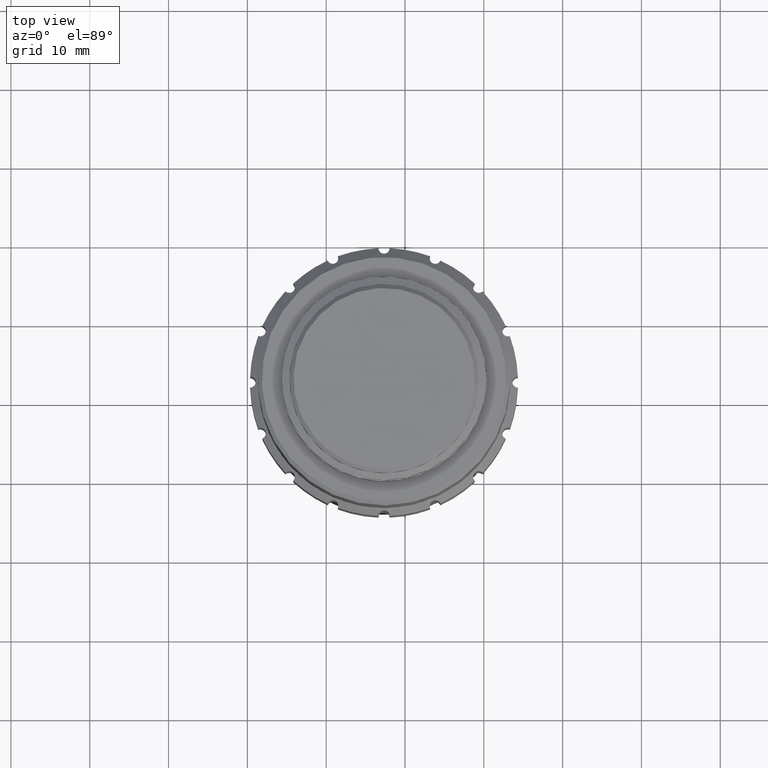
[diagram: clean part render]
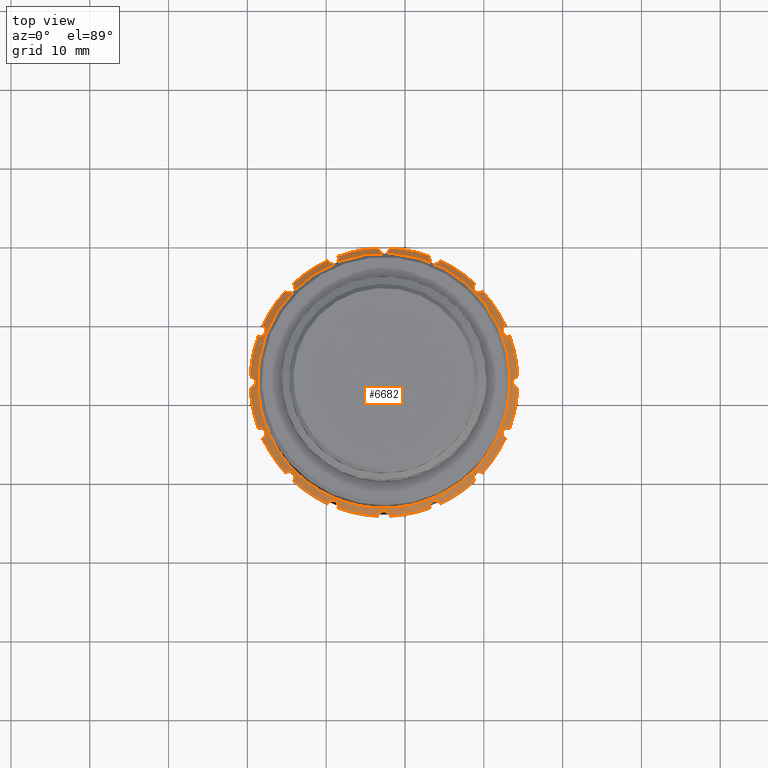
[diagram: same view with one face highlighted and labeled with its STEP entity id]
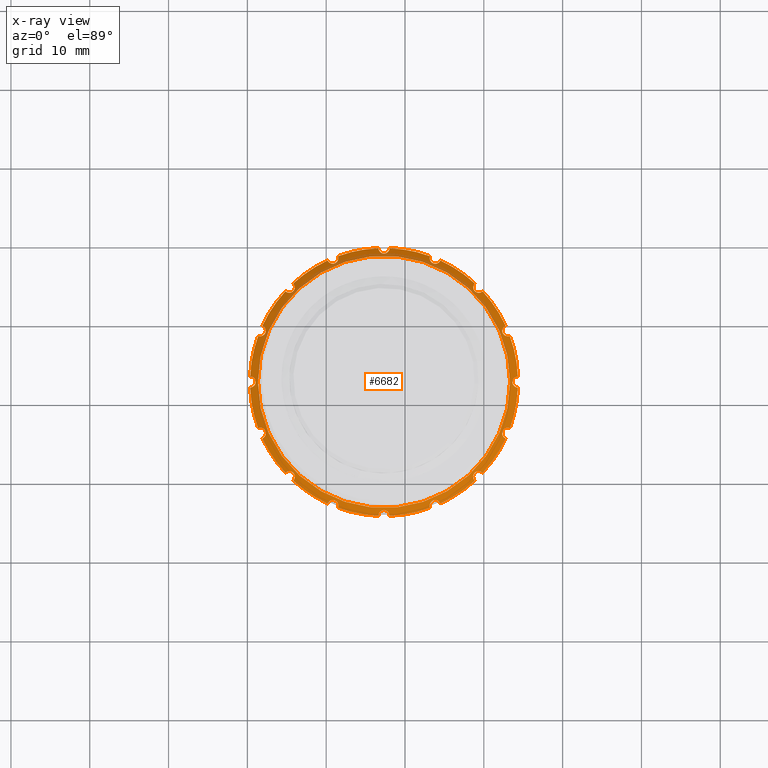
[diagram: x-ray of the same camera — body ghosted, the highlighted face saturated]
A machine part, top view. The second image highlights one B-rep face of the part: STEP entity #6682.
The next image is the same camera in x-ray: the body ghosted, the highlighted face saturated — about 11% of this face is hidden behind the body in this view.
In plain terms, the highlighted conical surface has half-angle 45 deg.
Its self-contained STEP definition (entity closure, byte-faithful):
#8 = CARTESIAN_POINT ( 'NONE',  ( -135.0595234093410966, 10.61534419870225143, 6.658622593199102546 ) ) ;
#32 = CARTESIAN_POINT ( 'NONE',  ( -121.9567282183409276, 5.109355329497929255, 6.579304794093292941 ) ) ;
#60 = CARTESIAN_POINT ( 'NONE',  ( -111.3548815014905102, 34.00095105871265844, 7.021922413567939891 ) ) ;
#79 = CARTESIAN_POINT ( 'NONE',  ( -122.4411631617769132, 38.33526632547767576, 7.178776448947764344 ) ) ;
#100 = CARTESIAN_POINT ( 'NONE',  ( -133.9711867122779552, 10.02965460616455040, 7.021922413567948773 ) ) ;
#112 = CARTESIAN_POINT ( 'NONE',  ( -106.6997833911264308, 27.86120965566607310, 6.500000000000000000 ) ) ;
#152 = DIRECTION ( 'NONE',  ( -1.000000000000000000, 0.000000000000000000, 0.000000000000000000 ) ) ;
#168 = DIRECTION ( 'NONE',  ( -0.000000000000000000, -0.000000000000000000, -1.000000000000000000 ) ) ;
#211 = CARTESIAN_POINT ( 'NONE',  ( -122.5505824526188974, 5.723251672099894272, 7.207941769656404318 ) ) ;
#212 = CARTESIAN_POINT ( 'NONE',  ( -111.2799637020730614, 10.31845952796024513, 7.178776448947758126 ) ) ;
#238 = CARTESIAN_POINT ( 'NONE',  ( -128.5089409301119758, 6.052052116680906479, 6.500000000000000000 ) ) ;
#275 = CARTESIAN_POINT ( 'NONE',  ( -134.5537861049154174, 33.33260945477384496, 7.084665610043466621 ) ) ;
#277 = CARTESIAN_POINT ( 'NONE',  ( -138.2304656383954864, 27.82096627344544615, 6.885319302732673563 ) ) ;
#353 = CARTESIAN_POINT ( 'NONE',  ( -137.9777920531595043, 16.10855303056919396, 7.085877810619993333 ) ) ;
#428 = ORIENTED_EDGE ( 'NONE', *, *, #16751, .T. ) ;
#448 = CARTESIAN_POINT ( 'NONE',  ( -116.8171272836566459, 6.052052116680864735, 6.500000000000000000 ) ) ;
#526 = CARTESIAN_POINT ( 'NONE',  ( -107.4979199527213325, 28.98500792578635199, 6.809977491739672928 ) ) ;
#537 = CARTESIAN_POINT ( 'NONE',  ( -138.0620553288675012, 16.15387279547071842, 7.023254621753825866 ) ) ;
#553 = CARTESIAN_POINT ( 'NONE',  ( -107.2416309191018513, 29.16934530644275370, 6.500000000000000000 ) ) ;
#555 = CARTESIAN_POINT ( 'NONE',  ( -138.0844372946664862, 29.16934530644307699, 6.499999999999998224 ) ) ;
#645 = AXIS2_PLACEMENT_3D ( 'NONE', #5141, #13687, #856 ) ;
#711 = VERTEX_POINT ( 'NONE', #18000 ) ;
#777 = B_SPLINE_CURVE_WITH_KNOTS ( 'NONE', 3,
 ( #16993, #8653, #1757, #1849, #3063, #15790, #275, #4467, #11615, #14218, #9954, #1566, #7264, #10137, #7548, #5779 ),
 .UNSPECIFIED., .F., .F.,
 ( 4, 2, 2, 2, 2, 2, 2, 4 ),
 ( 2.788950520417382238E-07, 0.0003320497425292167205, 0.0006638205900063916948, 0.0009955914374835666148, 0.001327362284960741535, 0.001659133132437916672, 0.001990903979915091809, 0.002654445674869461164 ),
 .UNSPECIFIED. ) ;
#800 = ORIENTED_EDGE ( 'NONE', *, *, #8747, .F. ) ;
#828 = DIRECTION ( 'NONE',  ( -1.000000000000000000, 0.000000000000000000, 0.000000000000000000 ) ) ;
#840 = CARTESIAN_POINT ( 'NONE',  ( -106.3713067781395836, 21.90490918553072319, 7.208279676267795644 ) ) ;
#856 = DIRECTION ( 'NONE',  ( -1.000000000000000000, 0.000000000000000000, 0.000000000000000000 ) ) ;
#857 = CARTESIAN_POINT ( 'NONE',  ( -110.1520451866486496, 33.52508807099724208, 6.499999999999998224 ) ) ;
#931 = CARTESIAN_POINT ( 'NONE',  ( -106.3709829465454959, 22.12775448670404188, 7.207941769656405206 ) ) ;
#952 = CARTESIAN_POINT ( 'NONE',  ( -139.4896638107191222, 22.71995642595129894, 6.658622593199106099 ) ) ;
#959 = ORIENTED_EDGE ( 'NONE', *, *, #14246, .F. ) ;
#965 = CARTESIAN_POINT ( 'NONE',  ( -115.5089916328797557, 37.43670602022085347, 6.500000000000000000 ) ) ;
#980 = CARTESIAN_POINT ( 'NONE',  ( -107.3869145781585814, 14.92501538968193842, 6.658622593199103434 ) ) ;
#984 = CARTESIAN_POINT ( 'NONE',  ( -107.0131745887181154, 27.79337159942414814, 6.817917757091790598 ) ) ;
#1020 = CARTESIAN_POINT ( 'NONE',  ( -122.7754857611495254, 38.30735399277738651, 7.207941769656410536 ) ) ;
#1065 = CARTESIAN_POINT ( 'NONE',  ( -137.9459211954673776, 14.93618803604573664, 6.657200975131940979 ) ) ;
#1076 = CARTESIAN_POINT ( 'NONE',  ( -107.2640128849010068, 27.87673286940642470, 7.023254621753844518 ) ) ;
#1095 = DIRECTION ( 'NONE',  ( -1.000000000000000000, 0.000000000000000000, 0.000000000000000000 ) ) ;
#1106 = VERTEX_POINT ( 'NONE', #14818 ) ;
#1110 = CIRCLE ( 'NONE', #14749, 16.99999999999998579 ) ;
#1121 = AXIS2_PLACEMENT_3D ( 'NONE', #10573, #14838, #10665 ) ;
#1129 = DIRECTION ( 'NONE',  ( -1.000000000000000000, 0.000000000000000000, 0.000000000000000000 ) ) ;
#1173 = ORIENTED_EDGE ( 'NONE', *, *, #15986, .F. ) ;
#1241 = CARTESIAN_POINT ( 'NONE',  ( -115.6826239242698620, 37.16713622964840624, 6.817917757091784381 ) ) ;
#1261 = VERTEX_POINT ( 'NONE', #9439 ) ;
#1301 = CARTESIAN_POINT ( 'NONE',  ( -129.8170765808884255, 37.43670602022100269, 6.500000000000000000 ) ) ;
#1310 = CARTESIAN_POINT ( 'NONE',  ( -138.6262848226420488, 16.16939600921107356, 6.500000000000000000 ) ) ;
#1326 = ORIENTED_EDGE ( 'NONE', *, *, #17590, .F. ) ;
#1328 = CARTESIAN_POINT ( 'NONE',  ( -121.9712925257061045, 5.186696305225519055, 6.657200975131929432 ) ) ;
#1380 = EDGE_CURVE ( 'NONE', #16396, #1261, #11575, .T. ) ;
#1409 = CARTESIAN_POINT ( 'NONE',  ( -107.5691948588921889, 28.14788653486110093, 7.208279676267808078 ) ) ;
#1414 = VERTEX_POINT ( 'NONE', #6042 ) ;
#1434 = ORIENTED_EDGE ( 'NONE', *, *, #13473, .F. ) ;
#1465 = DIRECTION ( 'NONE',  ( -1.000000000000000000, 0.000000000000000000, 0.000000000000000000 ) ) ;
#1504 = CARTESIAN_POINT ( 'NONE',  ( -110.9656783116938925, 10.63262143366481283, 7.178683898143440878 ) ) ;
#1513 = CIRCLE ( 'NONE', #645, 16.99999999999998579 ) ;
#1566 = CARTESIAN_POINT ( 'NONE',  ( -133.9808634892175974, 33.90387895606570368, 7.085877810620010209 ) ) ;
#1576 = CARTESIAN_POINT ( 'NONE',  ( -134.0457155056580802, 10.31794703724829354, 7.178683898143447095 ) ) ;
#1634 = CARTESIAN_POINT ( 'NONE',  ( -122.6630341068842540, 22.01530283243863195, 6.500000000000000000 ) ) ;
#1662 = CARTESIAN_POINT ( 'NONE',  ( -137.8148675040939963, 28.99571301505298138, 6.817917757091795927 ) ) ;
#1718 = CARTESIAN_POINT ( 'NONE',  ( -128.9995986711019498, 7.005955223866678239, 7.208279676267796532 ) ) ;
#1743 = CARTESIAN_POINT ( 'NONE',  ( -137.6718933315185893, 15.67671299235981053, 7.207941769656390996 ) ) ;
#1747 = CARTESIAN_POINT ( 'NONE',  ( -115.5839193104912965, 6.732415743855509227, 6.657200975131935650 ) ) ;
#1757 = CARTESIAN_POINT ( 'NONE',  ( -135.0517910630765357, 33.42578946287150643, 6.657200975131926768 ) ) ;
#1838 = CARTESIAN_POINT ( 'NONE',  ( -115.6933290135363990, 6.850188678275767273, 6.809977491739676481 ) ) ;
#1849 = CARTESIAN_POINT ( 'NONE',  ( -134.9056399269914550, 33.35885073997219763, 6.809977491739664934 ) ) ;
#1893 = CARTESIAN_POINT ( 'NONE',  ( -116.8573706658774114, 37.58273436394979683, 6.885319302732683333 ) ) ;
#2014 = CARTESIAN_POINT ( 'NONE',  ( -138.6262848226420488, 16.16939600921107356, 6.500000000000000000 ) ) ;
#2072 = ORIENTED_EDGE ( 'NONE', *, *, #6836, .F. ) ;
#2073 = CARTESIAN_POINT ( 'NONE',  ( -129.8170765808884255, 37.43670602022100269, 6.500000000000000000 ) ) ;
#2075 = AXIS2_PLACEMENT_3D ( 'NONE', #2512, #4013, #17934 ) ;
#2161 = EDGE_CURVE ( 'NONE', #13875, #2789, #13409, .T. ) ;
#2167 = CARTESIAN_POINT ( 'NONE',  ( -129.1140181233618023, 37.00791346716189878, 7.178683898143435549 ) ) ;
#2177 = VERTEX_POINT ( 'NONE', #7880 ) ;
#2243 = EDGE_CURVE ( 'NONE', #6464, #10565, #11470, .T. ) ;
#2246 = VERTEX_POINT ( 'NONE', #4642 ) ;
#2269 = CARTESIAN_POINT ( 'NONE',  ( -111.1532488683255195, 9.504313912203135928, 6.500000000000000000 ) ) ;
#2317 = CARTESIAN_POINT ( 'NONE',  ( -106.1931214140723085, 21.53760777854887110, 7.023254621753837412 ) ) ;
#2332 = VERTEX_POINT ( 'NONE', #10222 ) ;
#2340 = CARTESIAN_POINT ( 'NONE',  ( -139.4916406340973367, 21.32356125126054991, 6.657200975131933873 ) ) ;
#2439 = CARTESIAN_POINT ( 'NONE',  ( -139.0724408071137077, 22.41888172354751063, 7.085877810620010209 ) ) ;
#2464 = CARTESIAN_POINT ( 'NONE',  ( -107.3464659663721932, 16.10986866891740377, 7.084665610043467510 ) ) ;
#2473 = ORIENTED_EDGE ( 'NONE', *, *, #2768, .F. ) ;
#2512 = CARTESIAN_POINT ( 'NONE',  ( -122.6630341068842540, 22.01530283243863195, 6.500000000000000000 ) ) ;
#2543 = CARTESIAN_POINT ( 'NONE',  ( -138.0844372946665999, 14.86126035843439475, 6.500000000000000000 ) ) ;
#2549 = CARTESIAN_POINT ( 'NONE',  ( -107.5681081121911546, 15.88449655590539678, 7.207941769656402542 ) ) ;
#2551 = DIRECTION ( 'NONE',  ( -0.000000000000000000, -0.000000000000000000, -1.000000000000000000 ) ) ;
#2667 = CARTESIAN_POINT ( 'NONE',  ( -110.4156203995651992, 33.34248426014256239, 6.817917757091783493 ) ) ;
#2705 = CARTESIAN_POINT ( 'NONE',  ( -134.0065820144178019, 9.772697012331448718, 6.809977491739677369 ) ) ;
#2726 = CARTESIAN_POINT ( 'NONE',  ( -105.6777818098502735, 22.72326074510117166, 6.500000000000000000 ) ) ;
#2768 = EDGE_CURVE ( 'NONE', #7221, #16315, #17721, .T. ) ;
#2789 = VERTEX_POINT ( 'NONE', #15117 ) ;
#2793 = DIRECTION ( 'NONE',  ( -0.000000000000000000, -0.000000000000000000, -1.000000000000000000 ) ) ;
#2795 = CARTESIAN_POINT ( 'NONE',  ( -133.9841658642667142, 9.854602679465596538, 6.885319302732686886 ) ) ;
#2843 = CARTESIAN_POINT ( 'NONE',  ( -111.2803527081103283, 33.71265862762889753, 7.178683898143448872 ) ) ;
#2881 = CARTESIAN_POINT ( 'NONE',  ( -134.1179105452164322, 9.561559027344531003, 6.579304794093293829 ) ) ;
#2885 = ORIENTED_EDGE ( 'NONE', *, *, #12034, .F. ) ;
#2933 = CARTESIAN_POINT ( 'NONE',  ( -111.0649831391580449, 33.45723360750756825, 7.208279676267793867 ) ) ;
#3008 = CIRCLE ( 'NONE', #15481, 16.99999999999998579 ) ;
#3025 = EDGE_CURVE ( 'NONE', #13334, #16350, #11982, .T. ) ;
#3041 = EDGE_LOOP ( 'NONE', ( #17487, #3456, #800, #12052, #1173, #15952, #8668, #3786, #13702, #14463, #1434, #12605, #4814, #15627, #2072, #2885, #2473, #3667, #16104, #6267, #7586, #17415, #16453, #13757, #3075, #959, #10572, #4997, #12049, #11936, #1326, #6675 ) ) ;
#3051 = CARTESIAN_POINT ( 'NONE',  ( -116.8849653398985566, 6.365443314272585695, 6.817917757091788822 ) ) ;
#3063 = CARTESIAN_POINT ( 'NONE',  ( -134.8237342598572752, 33.33643458982110985, 6.885319302732668234 ) ) ;
#3075 = ORIENTED_EDGE ( 'NONE', *, *, #2243, .F. ) ;
#3185 = CARTESIAN_POINT ( 'NONE',  ( -106.3429832969944044, 22.23781123201058563, 7.178683898143447983 ) ) ;
#3252 = CARTESIAN_POINT ( 'NONE',  ( -137.8259452977639512, 28.05514493656366071, 7.178683898143440878 ) ) ;
#3277 = EDGE_CURVE ( 'NONE', #16350, #8424, #1110, .T. ) ;
#3298 = CARTESIAN_POINT ( 'NONE',  ( -128.4512914845272462, 37.83074087275197428, 6.658622593199110540 ) ) ;
#3335 = CARTESIAN_POINT ( 'NONE',  ( -116.8747767292412050, 6.199864792125327817, 6.658622593199102546 ) ) ;
#3416 = VERTEX_POINT ( 'NONE', #857 ) ;
#3456 = ORIENTED_EDGE ( 'NONE', *, *, #7758, .F. ) ;
#3568 = AXIS2_PLACEMENT_3D ( 'NONE', #17067, #4732, #10400 ) ;
#3667 = ORIENTED_EDGE ( 'NONE', *, *, #5455, .F. ) ;
#3686 = CARTESIAN_POINT ( 'NONE',  ( -107.5112007096744549, 15.03489264982438378, 6.817917757091782605 ) ) ;
#3726 = CARTESIAN_POINT ( 'NONE',  ( -123.0685212206788748, 38.42587846107456784, 7.084665610043469286 ) ) ;
#3779 = CARTESIAN_POINT ( 'NONE',  ( -106.6997833911265161, 16.16939600921096343, 6.500000000000000000 ) ) ;
#3786 = ORIENTED_EDGE ( 'NONE', *, *, #3277, .F. ) ;
#3821 = DIRECTION ( 'NONE',  ( -1.000000000000000000, 0.000000000000000000, 0.000000000000000000 ) ) ;
#3844 = CARTESIAN_POINT ( 'NONE',  ( -111.1532488683253348, 34.52629175267396278, 6.500000000000000000 ) ) ;
#3879 = CIRCLE ( 'NONE', #2075, 16.99999999999998579 ) ;
#4013 = DIRECTION ( 'NONE',  ( -0.000000000000000000, -0.000000000000000000, -1.000000000000000000 ) ) ;
#4039 = CARTESIAN_POINT ( 'NONE',  ( -115.9189387037748133, 37.04871208872899757, 7.023254621753833860 ) ) ;
#4043 = CARTESIAN_POINT ( 'NONE',  ( -111.3452047245508112, 10.12672670881164727, 7.085877810620005768 ) ) ;
#4070 = CARTESIAN_POINT ( 'NONE',  ( -111.2223295792571349, 33.61503801463889118, 7.207941769656405206 ) ) ;
#4161 = CARTESIAN_POINT ( 'NONE',  ( -111.1532488683253348, 34.52629175267396278, 6.500000000000000000 ) ) ;
#4193 = CARTESIAN_POINT ( 'NONE',  ( -122.6630341068842540, 22.01530283243863195, 6.500000000000000000 ) ) ;
#4222 = CARTESIAN_POINT ( 'NONE',  ( -105.7570866039435487, 22.72160872098201168, 6.579304794093297382 ) ) ;
#4250 = CARTESIAN_POINT ( 'NONE',  ( -110.2665448044273120, 33.41526146617492543, 6.658622593199110540 ) ) ;
#4309 = CARTESIAN_POINT ( 'NONE',  ( -122.2575469930894911, 5.604727203802691626, 7.084665610043460404 ) ) ;
#4405 = CARTESIAN_POINT ( 'NONE',  ( -122.8849050519915096, 5.695339339399598799, 7.178776448947763456 ) ) ;
#4406 = CARTESIAN_POINT ( 'NONE',  ( -110.2742771506918871, 10.60481620200583919, 6.657200975131936538 ) ) ;
#4467 = CARTESIAN_POINT ( 'NONE',  ( -134.3603899020745871, 33.39798423121252569, 7.178683898143440878 ) ) ;
#4526 = CARTESIAN_POINT ( 'NONE',  ( -128.7938403834175460, 6.920376837745515708, 7.207941769656400766 ) ) ;
#4541 = VERTEX_POINT ( 'NONE', #3844 ) ;
#4590 = CARTESIAN_POINT ( 'NONE',  ( -105.9932780231821141, 21.36460034725623558, 6.817917757091787045 ) ) ;
#4635 = EDGE_CURVE ( 'NONE', #9236, #1106, #5701, .T. ) ;
#4642 = CARTESIAN_POINT ( 'NONE',  ( -107.2416309191019650, 14.86126035843428639, 6.500000000000000000 ) ) ;
#4732 = DIRECTION ( 'NONE',  ( -0.000000000000000000, -0.000000000000000000, -1.000000000000000000 ) ) ;
#4746 = CARTESIAN_POINT ( 'NONE',  ( -137.6964433631746374, 28.75939823554800157, 7.023254621753847182 ) ) ;
#4786 = CARTESIAN_POINT ( 'NONE',  ( -129.6327392002320096, 37.18041698660155703, 6.809977491739668487 ) ) ;
#4787 = CARTESIAN_POINT ( 'NONE',  ( -116.7575999433628624, 37.33187097295064660, 7.084665610043473727 ) ) ;
#4814 = ORIENTED_EDGE ( 'NONE', *, *, #14471, .F. ) ;
#4823 = CARTESIAN_POINT ( 'NONE',  ( -116.0083574530989381, 7.009081092900147247, 7.084665610043485273 ) ) ;
#4866 = CARTESIAN_POINT ( 'NONE',  ( -122.6630341068842540, 22.01530283243863195, 6.500000000000000000 ) ) ;
#4965 = AXIS2_PLACEMENT_3D ( 'NONE', #11524, #11616, #10234 ) ;
#4973 = CARTESIAN_POINT ( 'NONE',  ( -129.0016239469630648, 37.02416205707299923, 7.207941769656398101 ) ) ;
#4997 = ORIENTED_EDGE ( 'NONE', *, *, #12970, .F. ) ;
#5016 = CIRCLE ( 'NONE', #9458, 16.99999999999998579 ) ;
#5076 = CARTESIAN_POINT ( 'NONE',  ( -129.6434442894985466, 6.863469435228817694, 6.817917757091774611 ) ) ;
#5083 = DIRECTION ( 'NONE',  ( -1.000000000000000000, 0.000000000000000000, 0.000000000000000000 ) ) ;
#5085 = CARTESIAN_POINT ( 'NONE',  ( -107.2416309191018513, 29.16934530644275370, 6.500000000000000000 ) ) ;
#5112 = DIRECTION ( 'NONE',  ( -0.000000000000000000, -0.000000000000000000, -1.000000000000000000 ) ) ;
#5118 = EDGE_CURVE ( 'NONE', #10565, #6309, #3008, .T. ) ;
#5141 = CARTESIAN_POINT ( 'NONE',  ( -122.6630341068842540, 22.01530283243863195, 6.500000000000000000 ) ) ;
#5241 = CARTESIAN_POINT ( 'NONE',  ( -138.9547614356289387, 22.12569647934665440, 7.208279676267806302 ) ) ;
#5341 = CARTESIAN_POINT ( 'NONE',  ( -139.3327901905864223, 22.66600531762114912, 6.817917757091784381 ) ) ;
#5365 = CARTESIAN_POINT ( 'NONE',  ( -107.0113533166308599, 16.22027351093869285, 6.809977491739663158 ) ) ;
#5452 = CARTESIAN_POINT ( 'NONE',  ( -107.2416309191019650, 14.86126035843428639, 6.500000000000000000 ) ) ;
#5455 = EDGE_CURVE ( 'NONE', #1106, #7221, #1513, .T. ) ;
#5536 = CARTESIAN_POINT ( 'NONE',  ( -122.7734277537922480, 5.723575503693941080, 7.208279676267795644 ) ) ;
#5537 = CARTESIAN_POINT ( 'NONE',  ( -110.5023339539111760, 10.69417107505624642, 6.885319302732685109 ) ) ;
#5586 = CARTESIAN_POINT ( 'NONE',  ( -122.6630341068842540, 22.01530283243863195, 6.500000000000000000 ) ) ;
#5606 = CARTESIAN_POINT ( 'NONE',  ( -134.6468024694667633, 10.70709729374570429, 7.023254621753832971 ) ) ;
#5670 = DIRECTION ( 'NONE',  ( -1.000000000000000000, 0.000000000000000000, 0.000000000000000000 ) ) ;
#5692 = CARTESIAN_POINT ( 'NONE',  ( -135.1740230271197731, 10.50551759387993300, 6.500000000000000000 ) ) ;
#5701 = B_SPLINE_CURVE_WITH_KNOTS ( 'NONE', 3,
 ( #9785, #2881, #15438, #2705, #2795, #100, #12656, #1576, #8481, #12745, #7003, #18304, #5606, #14133, #8, #5692 ),
 .UNSPECIFIED., .F., .F.,
 ( 4, 2, 2, 2, 2, 2, 2, 4 ),
 ( 2.788950520539461390E-07, 0.0003320497425292459398, 0.0006638205900064379902, 0.0009955914374836299322, 0.001327362284960821983, 0.001659133132438014033, 0.001990903979915205867, 0.002654445674869524482 ),
 .UNSPECIFIED. ) ;
#5719 = CARTESIAN_POINT ( 'NONE',  ( -110.2092903017901193, 10.56042639410648221, 6.579304794093293829 ) ) ;
#5733 = VERTEX_POINT ( 'NONE', #12129 ) ;
#5779 = CARTESIAN_POINT ( 'NONE',  ( -134.1728193454429174, 34.52629175267420436, 6.500000000000000000 ) ) ;
#5832 = CARTESIAN_POINT ( 'NONE',  ( -128.4580634283842642, 6.363622042185285821, 6.809977491739669375 ) ) ;
#5875 = CIRCLE ( 'NONE', #1121, 16.99999999999998579 ) ;
#5885 = EDGE_CURVE ( 'NONE', #6309, #8679, #11427, .T. ) ;
#5950 = CARTESIAN_POINT ( 'NONE',  ( -115.5089916328799546, 6.593899644656321613, 6.500000000000000000 ) ) ;
#6042 = CARTESIAN_POINT ( 'NONE',  ( -116.8171272836564185, 37.97855354819631657, 6.500000000000000000 ) ) ;
#6133 = CARTESIAN_POINT ( 'NONE',  ( -138.4784721471976354, 16.22704545479559357, 6.658622593199095441 ) ) ;
#6261 = EDGE_CURVE ( 'NONE', #8626, #2332, #12865, .T. ) ;
#6267 = ORIENTED_EDGE ( 'NONE', *, *, #8600, .F. ) ;
#6270 = CARTESIAN_POINT ( 'NONE',  ( -138.0844372946665999, 14.86126035843439475, 6.500000000000000000 ) ) ;
#6282 = CARTESIAN_POINT ( 'NONE',  ( -129.7852016788109495, 37.36407014638846391, 6.579304794093287612 ) ) ;
#6294 = AXIS2_PLACEMENT_3D ( 'NONE', #7253, #168, #5670 ) ;
#6309 = VERTEX_POINT ( 'NONE', #16207 ) ;
#6449 = AXIS2_PLACEMENT_3D ( 'NONE', #6486, #12146, #17788 ) ;
#6464 = VERTEX_POINT ( 'NONE', #7210 ) ;
#6476 = CARTESIAN_POINT ( 'NONE',  ( -129.7533215496409866, 6.739183303712942497, 6.658622593199109652 ) ) ;
#6486 = CARTESIAN_POINT ( 'NONE',  ( -122.6630341068842540, 22.01530283243863195, 6.500000000000000000 ) ) ;
#6526 = CARTESIAN_POINT ( 'NONE',  ( -106.1918295792031444, 22.49436458018746521, 7.021922413567939891 ) ) ;
#6618 = CARTESIAN_POINT ( 'NONE',  ( -123.3693399954274525, 38.92125033537932666, 6.579304794093294717 ) ) ;
#6622 = CARTESIAN_POINT ( 'NONE',  ( -106.3430706138452422, 21.79343188733144743, 7.178776448947762567 ) ) ;
#6675 = ORIENTED_EDGE ( 'NONE', *, *, #1380, .F. ) ;
#6682 = ADVANCED_FACE ( 'NONE', ( #13142, #17572 ), #12487, .T. ) ;
#6758 = AXIS2_PLACEMENT_3D ( 'NONE', #4193, #6909, #1129 ) ;
#6764 = CARTESIAN_POINT ( 'NONE',  ( -107.5004475295183113, 28.05570045298409454, 7.178776448947768785 ) ) ;
#6836 = EDGE_CURVE ( 'NONE', #13123, #12872, #17723, .T. ) ;
#6889 = CARTESIAN_POINT ( 'NONE',  ( -123.3547756880622615, 38.84390935965173242, 6.657200975131937426 ) ) ;
#6896 = AXIS2_PLACEMENT_3D ( 'NONE', #18032, #2793, #9784 ) ;
#6907 = B_SPLINE_CURVE_WITH_KNOTS ( 'NONE', 3,
 ( #4161, #9831, #16872, #12618, #15488, #60, #8624, #2843, #4070, #2933, #12706, #15577, #17052, #2667, #4250, #15400 ),
 .UNSPECIFIED., .F., .F.,
 ( 4, 2, 2, 2, 2, 2, 2, 4 ),
 ( 2.788950520332541829E-07, 0.0003320497425292149316, 0.0006638205900063966821, 0.0009955914374835783242, 0.001327362284960759966, 0.001659133132437941392, 0.001990903979915123467, 0.002654445674869485450 ),
 .UNSPECIFIED. ) ;
#6909 = DIRECTION ( 'NONE',  ( -0.000000000000000000, -0.000000000000000000, -1.000000000000000000 ) ) ;
#6934 = CARTESIAN_POINT ( 'NONE',  ( -116.0105677505165858, 37.02117486815454583, 7.085877810620004880 ) ) ;
#6937 = CARTESIAN_POINT ( 'NONE',  ( -123.0666129979930474, 5.605896132209174709, 7.085877810620008432 ) ) ;
#7003 = CARTESIAN_POINT ( 'NONE',  ( -134.3598774113627314, 10.63223242762746423, 7.178776448947755462 ) ) ;
#7039 = B_SPLINE_CURVE_WITH_KNOTS ( 'NONE', 3,
 ( #10323, #13015, #11801, #17175, #277, #17080, #15976, #3252, #7172, #15879, #7267, #13204, #4746, #1662, #7355, #8841 ),
 .UNSPECIFIED., .F., .F.,
 ( 4, 2, 2, 2, 2, 2, 2, 4 ),
 ( 2.788950520142565574E-07, 0.0003320497425291951991, 0.0006638205900063760823, 0.0009955914374835570738, 0.001327362284960738065, 0.001659133132437919057, 0.001990903979915099615, 0.002654445674869461598 ),
 .UNSPECIFIED. ) ;
#7080 = CARTESIAN_POINT ( 'NONE',  ( -139.6482864039182346, 22.72326074510129246, 6.500000000000001776 ) ) ;
#7114 = CARTESIAN_POINT ( 'NONE',  ( -121.9550761942217747, 5.030050535404635426, 6.500000000000000000 ) ) ;
#7138 = CARTESIAN_POINT ( 'NONE',  ( -128.4801185705762521, 6.125952395033995579, 6.579304794093292053 ) ) ;
#7172 = CARTESIAN_POINT ( 'NONE',  ( -137.7579601015773392, 28.14610910897196305, 7.207941769656406983 ) ) ;
#7197 = CARTESIAN_POINT ( 'NONE',  ( -106.8475960665708868, 27.80356021008153888, 6.658622593199110540 ) ) ;
#7210 = CARTESIAN_POINT ( 'NONE',  ( -115.5089916328799546, 6.593899644656321613, 6.500000000000000000 ) ) ;
#7221 = VERTEX_POINT ( 'NONE', #6270 ) ;
#7253 = CARTESIAN_POINT ( 'NONE',  ( -122.6630341068842540, 22.01530283243863195, 6.500000000000000000 ) ) ;
#7264 = CARTESIAN_POINT ( 'NONE',  ( -133.9712396455771568, 33.99907119502115904, 7.023254621753840077 ) ) ;
#7267 = CARTESIAN_POINT ( 'NONE',  ( -137.6558080146186569, 28.46566450307135554, 7.178776448947764344 ) ) ;
#7295 = CARTESIAN_POINT ( 'NONE',  ( -122.1839723591354669, 5.544098304757515194, 7.021922413567940779 ) ) ;
#7296 = CARTESIAN_POINT ( 'NONE',  ( -110.1520451866487917, 10.50551759387985129, 6.500000000000000000 ) ) ;
#7318 = CARTESIAN_POINT ( 'NONE',  ( -128.4686975478910256, 6.447871300927435101, 6.885319302732684221 ) ) ;
#7339 = CARTESIAN_POINT ( 'NONE',  ( -121.9583805133715515, 38.84193253627351083, 6.658622593199105211 ) ) ;
#7355 = CARTESIAN_POINT ( 'NONE',  ( -137.9391536356099266, 29.10559027519543562, 6.658622593199103434 ) ) ;
#7524 = EDGE_LOOP ( 'NONE', ( #428 ) ) ;
#7537 = CARTESIAN_POINT ( 'NONE',  ( -116.6226364863386209, 6.852716255072738960, 7.178776448947771449 ) ) ;
#7547 = EDGE_CURVE ( 'NONE', #14632, #5733, #3879, .T. ) ;
#7548 = CARTESIAN_POINT ( 'NONE',  ( -134.0629927406206434, 34.41179213489554201, 6.658622593199109652 ) ) ;
#7576 = CARTESIAN_POINT ( 'NONE',  ( -106.0588715283892327, 22.60896733823074811, 6.885319302732682445 ) ) ;
#7586 = ORIENTED_EDGE ( 'NONE', *, *, #6261, .F. ) ;
#7592 = CARTESIAN_POINT ( 'NONE',  ( -129.7421489032770978, 37.29818992102180886, 6.657200975131937426 ) ) ;
#7621 = CARTESIAN_POINT ( 'NONE',  ( -137.8256206842502252, 15.97490521189306278, 7.178776448947746580 ) ) ;
#7758 = EDGE_CURVE ( 'NONE', #3416, #13629, #17548, .T. ) ;
#7776 = CARTESIAN_POINT ( 'NONE',  ( -129.3177107606694847, 37.02152457197718860, 7.084665610043464845 ) ) ;
#7870 = CARTESIAN_POINT ( 'NONE',  ( -128.5089409301117485, 37.97855354819644447, 6.500000000000000000 ) ) ;
#7880 = CARTESIAN_POINT ( 'NONE',  ( -138.6630341068842824, 22.01530283243863195, 7.499999999999999112 ) ) ;
#7945 = CIRCLE ( 'NONE', #6449, 16.99999999999998579 ) ;
#7974 = CARTESIAN_POINT ( 'NONE',  ( -107.6296248505938280, 15.27120742932936004, 7.023254621753832971 ) ) ;
#8039 = CARTESIAN_POINT ( 'NONE',  ( -139.2671966853792753, 21.42163832664662593, 6.885319302732695768 ) ) ;
#8052 = CARTESIAN_POINT ( 'NONE',  ( -116.5322278303508767, 37.11022882713169935, 7.207941769656406095 ) ) ;
#8104 = CARTESIAN_POINT ( 'NONE',  ( -123.1420958546329132, 38.48650736011973805, 7.021922413567943444 ) ) ;
#8140 = CARTESIAN_POINT ( 'NONE',  ( -115.5727466641273935, 37.29142236116429387, 6.658622593199103434 ) ) ;
#8242 = CARTESIAN_POINT ( 'NONE',  ( -106.7736836694795954, 16.19821836874668008, 6.579304794093289388 ) ) ;
#8325 = CARTESIAN_POINT ( 'NONE',  ( -110.4204282867770388, 10.67175492490516575, 6.809977491739672040 ) ) ;
#8424 = VERTEX_POINT ( 'NONE', #13100 ) ;
#8425 = CARTESIAN_POINT ( 'NONE',  ( -121.9550761942215331, 39.00055512947261604, 6.500000000000000000 ) ) ;
#8457 = CARTESIAN_POINT ( 'NONE',  ( -122.2594552157753611, 38.42470953266808920, 7.085877810620011097 ) ) ;
#8480 = CARTESIAN_POINT ( 'NONE',  ( -128.5089409301117485, 37.97855354819644447, 6.500000000000000000 ) ) ;
#8481 = CARTESIAN_POINT ( 'NONE',  ( -134.1037386345113021, 10.41556765023829634, 7.207941769656399877 ) ) ;
#8594 = CARTESIAN_POINT ( 'NONE',  ( -122.0273041602239346, 5.337373589515522987, 6.809977491739664046 ) ) ;
#8600 = EDGE_CURVE ( 'NONE', #2332, #9236, #16845, .T. ) ;
#8620 = CARTESIAN_POINT ( 'NONE',  ( -128.4639771260022201, 6.202979658665694451, 6.657200975131932097 ) ) ;
#8624 = CARTESIAN_POINT ( 'NONE',  ( -111.3457274845490161, 33.90605483046970647, 7.084665610043473727 ) ) ;
#8626 = VERTEX_POINT ( 'NONE', #10774 ) ;
#8653 = CARTESIAN_POINT ( 'NONE',  ( -135.1167779119783461, 33.47017927077088473, 6.579304794093282283 ) ) ;
#8668 = ORIENTED_EDGE ( 'NONE', *, *, #16814, .F. ) ;
#8679 = VERTEX_POINT ( 'NONE', #12531 ) ;
#8731 = CARTESIAN_POINT ( 'NONE',  ( -137.8281482610471471, 15.04559773909082843, 6.809977491739673816 ) ) ;
#8747 = EDGE_CURVE ( 'NONE', #4541, #3416, #6907, .T. ) ;
#8841 = CARTESIAN_POINT ( 'NONE',  ( -138.0844372946664862, 29.16934530644307699, 6.499999999999998224 ) ) ;
#8908 = CARTESIAN_POINT ( 'NONE',  ( -107.6289543618957509, 28.76115525983308885, 7.021922413567942556 ) ) ;
#9000 = VERTEX_POINT ( 'NONE', #2269 ) ;
#9236 = VERTEX_POINT ( 'NONE', #15227 ) ;
#9309 = CARTESIAN_POINT ( 'NONE',  ( -105.6777818098502735, 21.30734491977609224, 6.500000000000000000 ) ) ;
#9400 = CARTESIAN_POINT ( 'NONE',  ( -123.2987640535444172, 38.69323207536173470, 6.809977491739674704 ) ) ;
#9426 = CARTESIAN_POINT ( 'NONE',  ( -139.5689816098249310, 21.30899694389536947, 6.579304794093292941 ) ) ;
#9439 = CARTESIAN_POINT ( 'NONE',  ( -105.6777818098502735, 22.72326074510117166, 6.500000000000000000 ) ) ;
#9458 = AXIS2_PLACEMENT_3D ( 'NONE', #1634, #12799, #152 ) ;
#9536 = CARTESIAN_POINT ( 'NONE',  ( -107.6702601991498085, 15.56494116180600251, 7.178776448947758126 ) ) ;
#9540 = EDGE_CURVE ( 'NONE', #2789, #2246, #13310, .T. ) ;
#9551 = CIRCLE ( 'NONE', #6896, 16.99999999999998579 ) ;
#9716 = CARTESIAN_POINT ( 'NONE',  ( -111.3358526791801637, 9.767889125119696203, 6.817917757091786157 ) ) ;
#9764 = AXIS2_PLACEMENT_3D ( 'NONE', #11613, #5112, #828 ) ;
#9784 = DIRECTION ( 'NONE',  ( -1.000000000000000000, 0.000000000000000000, 0.000000000000000000 ) ) ;
#9785 = CARTESIAN_POINT ( 'NONE',  ( -134.1728193454430595, 9.504313912203208758, 6.500000000000000000 ) ) ;
#9831 = CARTESIAN_POINT ( 'NONE',  ( -111.2081576685519906, 34.46904663753264231, 6.579304794093300934 ) ) ;
#9892 = CARTESIAN_POINT ( 'NONE',  ( -123.3137365920667321, 5.345546748736467180, 6.817917757091788822 ) ) ;
#9893 = CARTESIAN_POINT ( 'NONE',  ( -105.8344275796711571, 22.70704441361683479, 6.657200975131941867 ) ) ;
#9954 = CARTESIAN_POINT ( 'NONE',  ( -134.0461045116954040, 33.71214613691707740, 7.178776448947761679 ) ) ;
#10137 = CARTESIAN_POINT ( 'NONE',  ( -133.9902155345881738, 34.26271653975764053, 6.817917757091785269 ) ) ;
#10167 = DIRECTION ( 'NONE',  ( -0.000000000000000000, -0.000000000000000000, -1.000000000000000000 ) ) ;
#10199 = CARTESIAN_POINT ( 'NONE',  ( -129.1133957775169563, 7.022528924704197983, 7.178776448947764344 ) ) ;
#10222 = CARTESIAN_POINT ( 'NONE',  ( -129.8170765808886529, 6.593899644656365133, 6.500000000000000000 ) ) ;
#10234 = DIRECTION ( 'NONE',  ( -1.000000000000000000, 0.000000000000000000, 0.000000000000000000 ) ) ;
#10263 = CARTESIAN_POINT ( 'NONE',  ( -105.8364044030493289, 21.31064923892607510, 6.658622593199109652 ) ) ;
#10323 = CARTESIAN_POINT ( 'NONE',  ( -138.6262848226419635, 27.86120965566641772, 6.500000000000000000 ) ) ;
#10344 = AXIS2_PLACEMENT_3D ( 'NONE', #10958, #12351, #1095 ) ;
#10400 = DIRECTION ( 'NONE',  ( -1.000000000000000000, 0.000000000000000000, 0.000000000000000000 ) ) ;
#10412 = DIRECTION ( 'NONE',  ( -1.000000000000000000, 0.000000000000000000, 0.000000000000000000 ) ) ;
#10462 = CARTESIAN_POINT ( 'NONE',  ( -116.6231920027591684, 37.17821402331827585, 7.178683898143447095 ) ) ;
#10498 = CARTESIAN_POINT ( 'NONE',  ( -116.2120500904066347, 7.022692197715422857, 7.178683898143459530 ) ) ;
#10537 = DIRECTION ( 'NONE',  ( -0.000000000000000000, -0.000000000000000000, -1.000000000000000000 ) ) ;
#10552 = CARTESIAN_POINT ( 'NONE',  ( -116.8620910877661458, 37.82762600621153837, 6.657200975131936538 ) ) ;
#10565 = VERTEX_POINT ( 'NONE', #13175 ) ;
#10572 = ORIENTED_EDGE ( 'NONE', *, *, #17568, .F. ) ;
#10573 = CARTESIAN_POINT ( 'NONE',  ( -122.6630341068842540, 22.01530283243863195, 6.500000000000000000 ) ) ;
#10585 = CARTESIAN_POINT ( 'NONE',  ( -115.7604216937180723, 6.902242442427100499, 6.885319302732693991 ) ) ;
#10595 = CARTESIAN_POINT ( 'NONE',  ( -138.6262848226419635, 27.86120965566641772, 6.500000000000000000 ) ) ;
#10642 = CARTESIAN_POINT ( 'NONE',  ( -128.7034317274298019, 37.17788940980458534, 7.178776448947754574 ) ) ;
#10665 = DIRECTION ( 'NONE',  ( -1.000000000000000000, 0.000000000000000000, 0.000000000000000000 ) ) ;
#10716 = EDGE_CURVE ( 'NONE', #12872, #12944, #10833, .T. ) ;
#10754 = CARTESIAN_POINT ( 'NONE',  ( -107.5499737168726568, 28.91791524560465021, 6.885319302732683333 ) ) ;
#10774 = CARTESIAN_POINT ( 'NONE',  ( -128.5089409301119758, 6.052052116680906479, 6.500000000000000000 ) ) ;
#10814 = CARTESIAN_POINT ( 'NONE',  ( -139.6482864039182346, 21.30734491977621303, 6.500000000000000000 ) ) ;
#10833 = CIRCLE ( 'NONE', #16455, 16.99999999999998579 ) ;
#10846 = CARTESIAN_POINT ( 'NONE',  ( -105.6777818098502735, 21.30734491977609224, 6.500000000000000000 ) ) ;
#10936 = CARTESIAN_POINT ( 'NONE',  ( -107.3482761606090321, 27.92205263430795981, 7.085877810620017314 ) ) ;
#10958 = CARTESIAN_POINT ( 'NONE',  ( -122.6630341068842540, 22.01530283243863195, 6.500000000000000000 ) ) ;
#11064 = CARTESIAN_POINT ( 'NONE',  ( -123.3709920195466196, 39.00055512947263026, 6.500000000000000000 ) ) ;
#11084 = CARTESIAN_POINT ( 'NONE',  ( -106.6997833911264308, 27.86120965566607310, 6.500000000000000000 ) ) ;
#11116 = VERTEX_POINT ( 'NONE', #14033 ) ;
#11185 = CARTESIAN_POINT ( 'NONE',  ( -111.2630754731478362, 9.618813529981789401, 6.658622593199107875 ) ) ;
#11198 = B_SPLINE_CURVE_WITH_KNOTS ( 'NONE', 3,
 ( #14637, #17493, #10552, #16200, #1893, #13247, #4787, #10462, #8052, #12406, #15184, #6934, #4039, #1241, #8140, #965 ),
 .UNSPECIFIED., .F., .F.,
 ( 4, 2, 2, 2, 2, 2, 2, 4 ),
 ( 2.788950520338595997E-07, 0.0003320497425292146605, 0.0006638205900063953811, 0.0009955914374835761558, 0.001327362284960756931, 0.001659133132437937705, 0.001990903979915118697, 0.002654445674869480246 ),
 .UNSPECIFIED. ) ;
#11370 = CARTESIAN_POINT ( 'NONE',  ( -111.2211033318151721, 10.41725186471254538, 7.208279676267790315 ) ) ;
#11427 = B_SPLINE_CURVE_WITH_KNOTS ( 'NONE', 3,
 ( #7114, #32, #1328, #8594, #14155, #7295, #4309, #14343, #211, #5536, #4405, #6937, #12677, #9892, #15819, #11557 ),
 .UNSPECIFIED., .F., .F.,
 ( 4, 2, 2, 2, 2, 2, 2, 4 ),
 ( 2.788950520977749060E-07, 0.0003320497425292778153, 0.0006638205900064578311, 0.0009955914374836379553, 0.001327362284960817863, 0.001659133132437997770, 0.001990903979915178111, 0.002654445674869517977 ),
 .UNSPECIFIED. ) ;
#11460 = B_SPLINE_CURVE_WITH_KNOTS ( 'NONE', 3,
 ( #5085, #14656, #13268, #526, #10754, #8908, #13177, #17015, #15016, #1409, #6764, #10936, #1076, #984, #7197, #112 ),
 .UNSPECIFIED., .F., .F.,
 ( 4, 2, 2, 2, 2, 2, 2, 4 ),
 ( 2.788950520279401100E-07, 0.0003320497425292072338, 0.0006638205900063865990, 0.0009955914374835657474, 0.001327362284960745221, 0.001659133132437924478, 0.001990903979915103518, 0.002654445674869464634 ),
 .UNSPECIFIED. ) ;
#11470 = B_SPLINE_CURVE_WITH_KNOTS ( 'NONE', 3,
 ( #5950, #17350, #1747, #1838, #10585, #11603, #4823, #10498, #14392, #13191, #7537, #17255, #16052, #3051, #3335, #448 ),
 .UNSPECIFIED., .F., .F.,
 ( 4, 2, 2, 2, 2, 2, 2, 4 ),
 ( 2.788950520347364377E-07, 0.0003320497425292214368, 0.0006638205900064080662, 0.0009955914374835948041, 0.001327362284960781433, 0.001659133132437968280, 0.001990903979915155126, 0.002654445674869520145 ),
 .UNSPECIFIED. ) ;
#11504 = CARTESIAN_POINT ( 'NONE',  ( -137.6692558464227716, 15.36062617865337288, 7.084665610043467510 ) ) ;
#11524 = CARTESIAN_POINT ( 'NONE',  ( -122.6630341068842540, 22.01530283243863195, 6.500000000000000000 ) ) ;
#11554 = CARTESIAN_POINT ( 'NONE',  ( -122.6630341068842540, 22.01530283243863195, 6.500000000000000000 ) ) ;
#11557 = CARTESIAN_POINT ( 'NONE',  ( -123.3709920195468470, 5.030050535404641643, 6.500000000000000000 ) ) ;
#11575 = CIRCLE ( 'NONE', #3568, 16.99999999999998579 ) ;
#11599 = CARTESIAN_POINT ( 'NONE',  ( -137.6971138518728139, 15.26945040504409690, 7.021922413567938115 ) ) ;
#11603 = CARTESIAN_POINT ( 'NONE',  ( -115.9171816794896728, 6.981223087450144860, 7.021922413567953214 ) ) ;
#11613 = CARTESIAN_POINT ( 'NONE',  ( -122.6630341068842540, 22.01530283243863195, 6.500000000000000000 ) ) ;
#11615 = CARTESIAN_POINT ( 'NONE',  ( -134.2627692890845310, 33.45600736006567644, 7.207941769656399877 ) ) ;
#11616 = DIRECTION ( 'NONE',  ( -0.000000000000000000, -0.000000000000000000, -1.000000000000000000 ) ) ;
#11635 = B_SPLINE_CURVE_WITH_KNOTS ( 'NONE', 3,
 ( #11064, #6618, #6889, #9400, #12547, #8104, #3726, #13763, #1020, #14297, #79, #8457, #14206, #14483, #7339, #15865 ),
 .UNSPECIFIED., .F., .F.,
 ( 4, 2, 2, 2, 2, 2, 2, 4 ),
 ( 2.788950520977749060E-07, 0.0003320497425292791164, 0.0006638205900064604332, 0.0009955914374836418584, 0.001327362284960823067, 0.001659133132438004275, 0.001990903979915185917, 0.002654445674869557008 ),
 .UNSPECIFIED. ) ;
#11755 = CARTESIAN_POINT ( 'NONE',  ( -129.4088865342787642, 37.04938257742716701, 7.021922413567923904 ) ) ;
#11801 = CARTESIAN_POINT ( 'NONE',  ( -138.4753572806572208, 27.81624585155669038, 6.657200975131933873 ) ) ;
#11843 = CARTESIAN_POINT ( 'NONE',  ( -128.7956178093067763, 37.10914208043070062, 7.208279676267791203 ) ) ;
#11936 = ORIENTED_EDGE ( 'NONE', *, *, #2161, .F. ) ;
#11938 = CARTESIAN_POINT ( 'NONE',  ( -128.4411028738698519, 37.66516235060471729, 6.817917757091783493 ) ) ;
#11948 = CARTESIAN_POINT ( 'NONE',  ( -129.8170765808886529, 6.593899644656365133, 6.500000000000000000 ) ) ;
#11982 = B_SPLINE_CURVE_WITH_KNOTS ( 'NONE', 3,
 ( #2073, #6282, #7592, #4786, #12029, #11755, #7776, #2167, #4973, #11843, #10642, #16291, #17585, #11938, #3298, #7870 ),
 .UNSPECIFIED., .F., .F.,
 ( 4, 2, 2, 2, 2, 2, 2, 4 ),
 ( 2.788950520337417033E-07, 0.0003320497425292008912, 0.0006638205900063680592, 0.0009955914374835353898, 0.001327362284960702504, 0.001659133132437869834, 0.001990903979915036731, 0.002654445674869386138 ),
 .UNSPECIFIED. ) ;
#12029 = CARTESIAN_POINT ( 'NONE',  ( -129.5656465200502794, 37.12836322245023979, 6.885319302732670899 ) ) ;
#12034 = EDGE_CURVE ( 'NONE', #16315, #13123, #5016, .T. ) ;
#12049 = ORIENTED_EDGE ( 'NONE', *, *, #9540, .F. ) ;
#12052 = ORIENTED_EDGE ( 'NONE', *, *, #16321, .F. ) ;
#12111 = CARTESIAN_POINT ( 'NONE',  ( -139.3409633498073674, 21.37957288577838000, 6.809977491739672040 ) ) ;
#12129 = CARTESIAN_POINT ( 'NONE',  ( -135.1740230271196310, 33.52508807099749788, 6.500000000000000000 ) ) ;
#12146 = DIRECTION ( 'NONE',  ( -0.000000000000000000, -0.000000000000000000, -1.000000000000000000 ) ) ;
#12184 = CARTESIAN_POINT ( 'NONE',  ( -106.2536274066548714, 21.61172394132987762, 7.085877810620009321 ) ) ;
#12223 = AXIS2_PLACEMENT_3D ( 'NONE', #17357, #14763, #10412 ) ;
#12351 = DIRECTION ( 'NONE',  ( -0.000000000000000000, -0.000000000000000000, -1.000000000000000000 ) ) ;
#12367 = CARTESIAN_POINT ( 'NONE',  ( -110.1520451866487917, 10.50551759387985129, 6.500000000000000000 ) ) ;
#12393 = CARTESIAN_POINT ( 'NONE',  ( -139.1329467996962137, 22.49299788632851715, 7.023254621753840965 ) ) ;
#12406 = CARTESIAN_POINT ( 'NONE',  ( -116.3264695426664588, 37.02465044101055014, 7.208279676267792979 ) ) ;
#12485 = CARTESIAN_POINT ( 'NONE',  ( -139.6482864039182346, 22.72326074510129246, 6.500000000000001776 ) ) ;
#12487 = CONICAL_SURFACE ( 'NONE', #13065, 16.99999999999998579, 0.7853981633974473908 ) ;
#12507 = CARTESIAN_POINT ( 'NONE',  ( -107.5001229160045710, 15.97546072831369735, 7.178683898143444431 ) ) ;
#12531 = CARTESIAN_POINT ( 'NONE',  ( -123.3709920195468470, 5.030050535404641643, 6.500000000000000000 ) ) ;
#12547 = CARTESIAN_POINT ( 'NONE',  ( -123.2566986126761890, 38.61946541093364971, 6.885319302732682445 ) ) ;
#12605 = ORIENTED_EDGE ( 'NONE', *, *, #7547, .F. ) ;
#12618 = CARTESIAN_POINT ( 'NONE',  ( -111.3194861993506350, 34.25790865254574413, 6.809977491739677369 ) ) ;
#12633 = CARTESIAN_POINT ( 'NONE',  ( -122.6630341068842540, 22.01530283243863195, 7.499999999999999112 ) ) ;
#12656 = CARTESIAN_POINT ( 'NONE',  ( -133.9803407292194777, 10.12455083440748460, 7.084665610043473727 ) ) ;
#12677 = CARTESIAN_POINT ( 'NONE',  ( -123.1407291607740575, 5.545390139626692694, 7.023254621753843630 ) ) ;
#12706 = CARTESIAN_POINT ( 'NONE',  ( -110.9661908024057482, 33.39837323724972151, 7.178776448947755462 ) ) ;
#12720 = B_SPLINE_CURVE_WITH_KNOTS ( 'NONE', 3,
 ( #7296, #5719, #4406, #8325, #5537, #14249, #12952, #1504, #16841, #11370, #212, #4043, #16931, #9716, #11185, #15457 ),
 .UNSPECIFIED., .F., .F.,
 ( 4, 2, 2, 2, 2, 2, 2, 4 ),
 ( 2.788950520326076321E-07, 0.0003320497425292097816, 0.0006638205900063870327, 0.0009955914374835642296, 0.001327362284960741318, 0.001659133132437918623, 0.001990903979915096145, 0.002654445674869449889 ),
 .UNSPECIFIED. ) ;
#12745 = CARTESIAN_POINT ( 'NONE',  ( -134.2610850746103495, 10.57337205736961749, 7.208279676267790315 ) ) ;
#12799 = DIRECTION ( 'NONE',  ( -0.000000000000000000, -0.000000000000000000, -1.000000000000000000 ) ) ;
#12865 = B_SPLINE_CURVE_WITH_KNOTS ( 'NONE', 3,
 ( #238, #7138, #8620, #5832, #7318, #12978, #14368, #17228, #4526, #1718, #10199, #17594, #13166, #5076, #6476, #11948 ),
 .UNSPECIFIED., .F., .F.,
 ( 4, 2, 2, 2, 2, 2, 2, 4 ),
 ( 2.788950520312814432E-07, 0.0003320497425292135763, 0.0006638205900063958147, 0.0009955914374835781074, 0.001327362284960760400, 0.001659133132437942693, 0.001990903979915125202, 0.002654445674869488053 ),
 .UNSPECIFIED. ) ;
#12872 = VERTEX_POINT ( 'NONE', #7080 ) ;
#12944 = VERTEX_POINT ( 'NONE', #10595 ) ;
#12949 = B_SPLINE_CURVE_WITH_KNOTS ( 'NONE', 3,
 ( #2726, #4222, #9893, #15548, #7576, #6526, #17206, #3185, #931, #840, #6622, #12184, #2317, #4590, #10263, #9309 ),
 .UNSPECIFIED., .F., .F.,
 ( 4, 2, 2, 2, 2, 2, 2, 4 ),
 ( 2.788950521056305013E-07, 0.0003320497425292817184, 0.0006638205900064578311, 0.0009955914374836338353, 0.001327362284960810056, 0.001659133132437986278, 0.001990903979915162065, 0.002654445674869519711 ),
 .UNSPECIFIED. ) ;
#12952 = CARTESIAN_POINT ( 'NONE',  ( -110.7722821088530480, 10.69799621010350954, 7.084665610043465733 ) ) ;
#12970 = EDGE_CURVE ( 'NONE', #2246, #16772, #17746, .T. ) ;
#12978 = CARTESIAN_POINT ( 'NONE',  ( -128.5236958471705293, 6.614565099563505690, 7.021922413567943444 ) ) ;
#13015 = CARTESIAN_POINT ( 'NONE',  ( -138.5523845442888842, 27.83238729613070106, 6.579304794093275177 ) ) ;
#13065 = AXIS2_PLACEMENT_3D ( 'NONE', #4866, #10537, #16005 ) ;
#13100 = CARTESIAN_POINT ( 'NONE',  ( -123.3709920195466196, 39.00055512947263026, 6.500000000000000000 ) ) ;
#13123 = VERTEX_POINT ( 'NONE', #16299 ) ;
#13142 = FACE_OUTER_BOUND ( 'NONE', #3041, .T. ) ;
#13166 = CARTESIAN_POINT ( 'NONE',  ( -129.4071295099936094, 6.981893576148215708, 7.023254621753829419 ) ) ;
#13175 = CARTESIAN_POINT ( 'NONE',  ( -116.8171272836566459, 6.052052116680864735, 6.500000000000000000 ) ) ;
#13177 = CARTESIAN_POINT ( 'NONE',  ( -107.6568123673456796, 28.66997948622380932, 7.084665610043476391 ) ) ;
#13191 = CARTESIAN_POINT ( 'NONE',  ( -116.5304504044616465, 6.921463584446605033, 7.208279676267806302 ) ) ;
#13204 = CARTESIAN_POINT ( 'NONE',  ( -137.6689061426000933, 28.66776918880623981, 7.085877810620011985 ) ) ;
#13247 = CARTESIAN_POINT ( 'NONE',  ( -116.8023723665979077, 37.41604056531372891, 7.021922413567940779 ) ) ;
#13268 = CARTESIAN_POINT ( 'NONE',  ( -107.3801470183011020, 29.09441762883143312, 6.657200975131938314 ) ) ;
#13281 = CARTESIAN_POINT ( 'NONE',  ( -137.6556447416074889, 15.56431881596105882, 7.178683898143435549 ) ) ;
#13310 = B_SPLINE_CURVE_WITH_KNOTS ( 'NONE', 3,
 ( #3779, #8242, #16583, #5365, #18065, #13536, #2464, #12507, #2549, #18158, #9536, #15199, #7974, #3686, #980, #5452 ),
 .UNSPECIFIED., .F., .F.,
 ( 4, 2, 2, 2, 2, 2, 2, 4 ),
 ( 2.788950520283352509E-07, 0.0003320497425292048485, 0.0006638205900063812864, 0.0009955914374835579412, 0.001327362284960734379, 0.001659133132437910817, 0.001990903979915087472, 0.002654445674869442082 ),
 .UNSPECIFIED. ) ;
#13334 = VERTEX_POINT ( 'NONE', #1301 ) ;
#13409 = CIRCLE ( 'NONE', #6294, 16.99999999999998579 ) ;
#13473 = EDGE_CURVE ( 'NONE', #5733, #11116, #777, .T. ) ;
#13536 = CARTESIAN_POINT ( 'NONE',  ( -107.2622963740090825, 16.15464109215242416, 7.021922413567931009 ) ) ;
#13629 = VERTEX_POINT ( 'NONE', #553 ) ;
#13670 = DIRECTION ( 'NONE',  ( -0.000000000000000000, -0.000000000000000000, -1.000000000000000000 ) ) ;
#13687 = DIRECTION ( 'NONE',  ( -0.000000000000000000, -0.000000000000000000, -1.000000000000000000 ) ) ;
#13702 = ORIENTED_EDGE ( 'NONE', *, *, #3025, .F. ) ;
#13712 = AXIS2_PLACEMENT_3D ( 'NONE', #12633, #13670, #3821 ) ;
#13757 = ORIENTED_EDGE ( 'NONE', *, *, #5118, .F. ) ;
#13763 = CARTESIAN_POINT ( 'NONE',  ( -122.8855425064560905, 38.33535364232847087, 7.178683898143447983 ) ) ;
#13805 = CARTESIAN_POINT ( 'NONE',  ( -138.0118014208341037, 14.89313526051194536, 6.579304794093300934 ) ) ;
#13812 = CARTESIAN_POINT ( 'NONE',  ( -122.6630341068842540, 22.01530283243863195, 6.500000000000000000 ) ) ;
#13846 = EDGE_CURVE ( 'NONE', #11116, #13334, #7945, .T. ) ;
#13869 = EDGE_CURVE ( 'NONE', #13629, #16396, #11460, .T. ) ;
#13871 = CIRCLE ( 'NONE', #4965, 16.99999999999998579 ) ;
#13875 = VERTEX_POINT ( 'NONE', #10846 ) ;
#14033 = CARTESIAN_POINT ( 'NONE',  ( -134.1728193454429174, 34.52629175267420436, 6.500000000000000000 ) ) ;
#14133 = CARTESIAN_POINT ( 'NONE',  ( -134.9104478142032519, 10.68812140473460204, 6.817917757091781716 ) ) ;
#14155 = CARTESIAN_POINT ( 'NONE',  ( -122.0693696010921911, 5.411140253943616862, 6.885319302732683333 ) ) ;
#14206 = CARTESIAN_POINT ( 'NONE',  ( -122.1853390529943226, 38.48521552525057388, 7.023254621753839189 ) ) ;
#14208 = DIRECTION ( 'NONE',  ( -0.000000000000000000, -0.000000000000000000, -1.000000000000000000 ) ) ;
#14218 = CARTESIAN_POINT ( 'NONE',  ( -134.1049648819532649, 33.61335380016479490, 7.208279676267797420 ) ) ;
#14246 = EDGE_CURVE ( 'NONE', #9000, #6464, #16818, .T. ) ;
#14249 = CARTESIAN_POINT ( 'NONE',  ( -110.6773858806101600, 10.70715022704500896, 7.021922413567945220 ) ) ;
#14297 = CARTESIAN_POINT ( 'NONE',  ( -122.5526404599762031, 38.30703016118332016, 7.208279676267797420 ) ) ;
#14343 = CARTESIAN_POINT ( 'NONE',  ( -122.4405257073123323, 5.695252022548796589, 7.178683898143439102 ) ) ;
#14368 = CARTESIAN_POINT ( 'NONE',  ( -128.5684682704055604, 6.698734691926568452, 7.084665610043464845 ) ) ;
#14392 = CARTESIAN_POINT ( 'NONE',  ( -116.3244442668054006, 7.006443607804325069, 7.207941769656417641 ) ) ;
#14403 = EDGE_CURVE ( 'NONE', #8679, #8626, #13871, .T. ) ;
#14463 = ORIENTED_EDGE ( 'NONE', *, *, #13846, .F. ) ;
#14471 = EDGE_CURVE ( 'NONE', #12944, #14632, #7039, .T. ) ;
#14483 = CARTESIAN_POINT ( 'NONE',  ( -122.0123316217016765, 38.68505891614080383, 6.817917757091786157 ) ) ;
#14632 = VERTEX_POINT ( 'NONE', #555 ) ;
#14637 = CARTESIAN_POINT ( 'NONE',  ( -116.8171272836564185, 37.97855354819631657, 6.500000000000000000 ) ) ;
#14656 = CARTESIAN_POINT ( 'NONE',  ( -107.3142667929344185, 29.13747040436522795, 6.579304794093293829 ) ) ;
#14749 = AXIS2_PLACEMENT_3D ( 'NONE', #11554, #10167, #15816 ) ;
#14763 = DIRECTION ( 'NONE',  ( -0.000000000000000000, -0.000000000000000000, -1.000000000000000000 ) ) ;
#14818 = CARTESIAN_POINT ( 'NONE',  ( -135.1740230271197731, 10.50551759387993300, 6.500000000000000000 ) ) ;
#14838 = DIRECTION ( 'NONE',  ( -0.000000000000000000, -0.000000000000000000, -1.000000000000000000 ) ) ;
#15016 = CARTESIAN_POINT ( 'NONE',  ( -107.6541748822498903, 28.35389267251735035, 7.207941769656413200 ) ) ;
#15044 = EDGE_CURVE ( 'NONE', #15161, #1414, #5875, .T. ) ;
#15117 = CARTESIAN_POINT ( 'NONE',  ( -106.6997833911265161, 16.16939600921096343, 6.500000000000000000 ) ) ;
#15161 = VERTEX_POINT ( 'NONE', #8425 ) ;
#15184 = CARTESIAN_POINT ( 'NONE',  ( -116.2126724362514949, 37.00807674017303839, 7.178776448947759015 ) ) ;
#15199 = CARTESIAN_POINT ( 'NONE',  ( -107.6571620711682868, 15.36283647607112357, 7.085877810620004880 ) ) ;
#15227 = CARTESIAN_POINT ( 'NONE',  ( -134.1728193454430595, 9.504313912203208758, 6.500000000000000000 ) ) ;
#15263 = CARTESIAN_POINT ( 'NONE',  ( -139.0736097355201935, 21.60981571864395434, 7.084665610043481720 ) ) ;
#15351 = CARTESIAN_POINT ( 'NONE',  ( -138.9829975999232943, 22.23717377754595503, 7.178776448947767008 ) ) ;
#15400 = CARTESIAN_POINT ( 'NONE',  ( -110.1520451866486496, 33.52508807099724208, 6.499999999999998224 ) ) ;
#15438 = CARTESIAN_POINT ( 'NONE',  ( -134.0735207373170681, 9.626545876246302313, 6.657200975131937426 ) ) ;
#15457 = CARTESIAN_POINT ( 'NONE',  ( -111.1532488683255195, 9.504313912203135928, 6.500000000000000000 ) ) ;
#15481 = AXIS2_PLACEMENT_3D ( 'NONE', #5586, #14208, #1465 ) ;
#15488 = CARTESIAN_POINT ( 'NONE',  ( -111.3419023495017228, 34.17600298541159987, 6.885319302732682445 ) ) ;
#15548 = CARTESIAN_POINT ( 'NONE',  ( -105.9851048639611548, 22.65103277909898338, 6.809977491739675592 ) ) ;
#15577 = CARTESIAN_POINT ( 'NONE',  ( -110.7744579832571503, 33.33313221477195043, 7.085877810620001327 ) ) ;
#15627 = ORIENTED_EDGE ( 'NONE', *, *, #10716, .F. ) ;
#15790 = CARTESIAN_POINT ( 'NONE',  ( -134.6486823331583480, 33.32345543783234376, 7.021922413567927457 ) ) ;
#15816 = DIRECTION ( 'NONE',  ( -1.000000000000000000, 0.000000000000000000, 0.000000000000000000 ) ) ;
#15819 = CARTESIAN_POINT ( 'NONE',  ( -123.3676877003968571, 5.188673128603747742, 6.658622593199105211 ) ) ;
#15865 = CARTESIAN_POINT ( 'NONE',  ( -121.9550761942215331, 39.00055512947261604, 6.500000000000000000 ) ) ;
#15879 = CARTESIAN_POINT ( 'NONE',  ( -137.6723817154561686, 28.35186739665639521, 7.208279676267799196 ) ) ;
#15952 = ORIENTED_EDGE ( 'NONE', *, *, #15044, .F. ) ;
#15976 = CARTESIAN_POINT ( 'NONE',  ( -137.9796022473963149, 27.92073699595995961, 7.084665610043463069 ) ) ;
#15986 = EDGE_CURVE ( 'NONE', #1414, #711, #11198, .T. ) ;
#16005 = DIRECTION ( 'NONE',  ( -1.000000000000000000, 0.000000000000000000, 0.000000000000000000 ) ) ;
#16052 = CARTESIAN_POINT ( 'NONE',  ( -116.8016040699163085, 6.616281610455450490, 7.023254621753842741 ) ) ;
#16104 = ORIENTED_EDGE ( 'NONE', *, *, #4635, .F. ) ;
#16200 = CARTESIAN_POINT ( 'NONE',  ( -116.8680047853841728, 37.66698362269194433, 6.809977491739671152 ) ) ;
#16207 = CARTESIAN_POINT ( 'NONE',  ( -121.9550761942217747, 5.030050535404635426, 6.500000000000000000 ) ) ;
#16291 = CARTESIAN_POINT ( 'NONE',  ( -128.5697839087536920, 37.33006077871387163, 7.085877810620000439 ) ) ;
#16299 = CARTESIAN_POINT ( 'NONE',  ( -139.6482864039182346, 21.30734491977621303, 6.500000000000000000 ) ) ;
#16315 = VERTEX_POINT ( 'NONE', #1310 ) ;
#16321 = EDGE_CURVE ( 'NONE', #711, #4541, #9551, .T. ) ;
#16350 = VERTEX_POINT ( 'NONE', #8480 ) ;
#16396 = VERTEX_POINT ( 'NONE', #11084 ) ;
#16453 = ORIENTED_EDGE ( 'NONE', *, *, #5885, .F. ) ;
#16455 = AXIS2_PLACEMENT_3D ( 'NONE', #13812, #2551, #5083 ) ;
#16558 = CARTESIAN_POINT ( 'NONE',  ( -138.9550852672229553, 21.90285117817333571, 7.207941769656414976 ) ) ;
#16583 = CARTESIAN_POINT ( 'NONE',  ( -106.8507109331113156, 16.21435981332068721, 6.657200975131931209 ) ) ;
#16751 = EDGE_CURVE ( 'NONE', #2177, #2177, #17243, .T. ) ;
#16772 = VERTEX_POINT ( 'NONE', #12367 ) ;
#16814 = EDGE_CURVE ( 'NONE', #8424, #15161, #11635, .T. ) ;
#16818 = CIRCLE ( 'NONE', #6758, 16.99999999999998579 ) ;
#16841 = CARTESIAN_POINT ( 'NONE',  ( -111.0632989246838775, 10.57459830481164786, 7.207941769656400766 ) ) ;
#16845 = CIRCLE ( 'NONE', #10344, 16.99999999999998579 ) ;
#16872 = CARTESIAN_POINT ( 'NONE',  ( -111.2525474764513120, 34.40405978863088166, 6.657200975131939202 ) ) ;
#16931 = CARTESIAN_POINT ( 'NONE',  ( -111.3548285681913086, 10.03153446985617769, 7.023254621753833860 ) ) ;
#16993 = CARTESIAN_POINT ( 'NONE',  ( -135.1740230271196310, 33.52508807099749788, 6.500000000000000000 ) ) ;
#17015 = CARTESIAN_POINT ( 'NONE',  ( -107.6704234721610192, 28.46628684891613403, 7.178683898143454201 ) ) ;
#17052 = CARTESIAN_POINT ( 'NONE',  ( -110.6792657443016594, 33.32350837113147435, 7.023254621753832083 ) ) ;
#17067 = CARTESIAN_POINT ( 'NONE',  ( -122.6630341068842540, 22.01530283243863195, 6.500000000000000000 ) ) ;
#17080 = CARTESIAN_POINT ( 'NONE',  ( -138.0637718397593687, 27.87596457272493566, 7.021922413567932786 ) ) ;
#17175 = CARTESIAN_POINT ( 'NONE',  ( -138.3147148971375771, 27.81033215393867764, 6.809977491739668487 ) ) ;
#17206 = CARTESIAN_POINT ( 'NONE',  ( -106.2524584782483572, 22.42078994623342680, 7.084665610043475503 ) ) ;
#17228 = CARTESIAN_POINT ( 'NONE',  ( -128.7028762110092259, 6.852391641558930324, 7.178683898143443542 ) ) ;
#17243 = CIRCLE ( 'NONE', #13712, 16.00000000000001421 ) ;
#17251 = CARTESIAN_POINT ( 'NONE',  ( -137.7568733548762907, 15.88271913001607061, 7.208279676267778768 ) ) ;
#17255 = CARTESIAN_POINT ( 'NONE',  ( -116.7562843050147734, 6.700544886163453562, 7.085877810620013761 ) ) ;
#17346 = CARTESIAN_POINT ( 'NONE',  ( -138.3128936250503784, 16.23723406545299852, 6.817917757091777275 ) ) ;
#17350 = CARTESIAN_POINT ( 'NONE',  ( -115.5408665349575017, 6.666535518488865719, 6.579304794093297382 ) ) ;
#17357 = CARTESIAN_POINT ( 'NONE',  ( -122.6630341068842540, 22.01530283243863195, 6.500000000000000000 ) ) ;
#17415 = ORIENTED_EDGE ( 'NONE', *, *, #14403, .F. ) ;
#17430 = CARTESIAN_POINT ( 'NONE',  ( -137.7760944968958370, 15.11269041927252132, 6.885319302732680669 ) ) ;
#17487 = ORIENTED_EDGE ( 'NONE', *, *, #13869, .F. ) ;
#17493 = CARTESIAN_POINT ( 'NONE',  ( -116.8459496431921281, 37.90465326984323724, 6.579304794093294717 ) ) ;
#17548 = CIRCLE ( 'NONE', #12223, 16.99999999999998579 ) ;
#17568 = EDGE_CURVE ( 'NONE', #16772, #9000, #12720, .T. ) ;
#17572 = FACE_BOUND ( 'NONE', #7524, .T. ) ;
#17585 = CARTESIAN_POINT ( 'NONE',  ( -128.5244641438521285, 37.41432405442186138, 7.023254621753837412 ) ) ;
#17590 = EDGE_CURVE ( 'NONE', #1261, #13875, #12949, .T. ) ;
#17594 = CARTESIAN_POINT ( 'NONE',  ( -129.3155004632518228, 7.009430796722691426, 7.085877810620012873 ) ) ;
#17721 = B_SPLINE_CURVE_WITH_KNOTS ( 'NONE', 3,
 ( #2543, #13805, #1065, #8731, #17430, #11599, #11504, #13281, #1743, #17251, #7621, #353, #537, #17346, #6133, #2014 ),
 .UNSPECIFIED., .F., .F.,
 ( 4, 2, 2, 2, 2, 2, 2, 4 ),
 ( 2.788950520370612784E-07, 0.0003320497425292157447, 0.0006638205900063944053, 0.0009955914374835731200, 0.001327362284960751726, 0.001659133132437930333, 0.001990903979915109156, 0.002654445674869463333 ),
 .UNSPECIFIED. ) ;
#17723 = B_SPLINE_CURVE_WITH_KNOTS ( 'NONE', 3,
 ( #10814, #9426, #2340, #12111, #8039, #17948, #15263, #17759, #16558, #5241, #15351, #2439, #12393, #5341, #952, #12485 ),
 .UNSPECIFIED., .F., .F.,
 ( 4, 2, 2, 2, 2, 2, 2, 4 ),
 ( 2.788950521104785473E-07, 0.0003320497425292897415, 0.0006638205900064689984, 0.0009955914374836481468, 0.001327362284960827404, 0.001659133132438006661, 0.001990903979915185917, 0.002654445674869542696 ),
 .UNSPECIFIED. ) ;
#17746 = CIRCLE ( 'NONE', #9764, 16.99999999999998579 ) ;
#17759 = CARTESIAN_POINT ( 'NONE',  ( -138.9830849167740894, 21.79279443286677420, 7.178683898143455977 ) ) ;
#17788 = DIRECTION ( 'NONE',  ( -1.000000000000000000, 0.000000000000000000, 0.000000000000000000 ) ) ;
#17934 = DIRECTION ( 'NONE',  ( -1.000000000000000000, 0.000000000000000000, 0.000000000000000000 ) ) ;
#17948 = CARTESIAN_POINT ( 'NONE',  ( -139.1342386345654063, 21.53624108468992659, 7.021922413567954102 ) ) ;
#18000 = CARTESIAN_POINT ( 'NONE',  ( -115.5089916328797557, 37.43670602022085347, 6.500000000000000000 ) ) ;
#18032 = CARTESIAN_POINT ( 'NONE',  ( -122.6630341068842540, 22.01530283243863195, 6.500000000000000000 ) ) ;
#18065 = CARTESIAN_POINT ( 'NONE',  ( -107.0956025753730358, 16.20963939143193855, 6.885319302732674451 ) ) ;
#18158 = CARTESIAN_POINT ( 'NONE',  ( -107.6536864983123394, 15.67873826822097350, 7.208279676267793867 ) ) ;
#18304 = CARTESIAN_POINT ( 'NONE',  ( -134.5516102305113577, 10.69747345010522288, 7.085877810619999551 ) ) ;